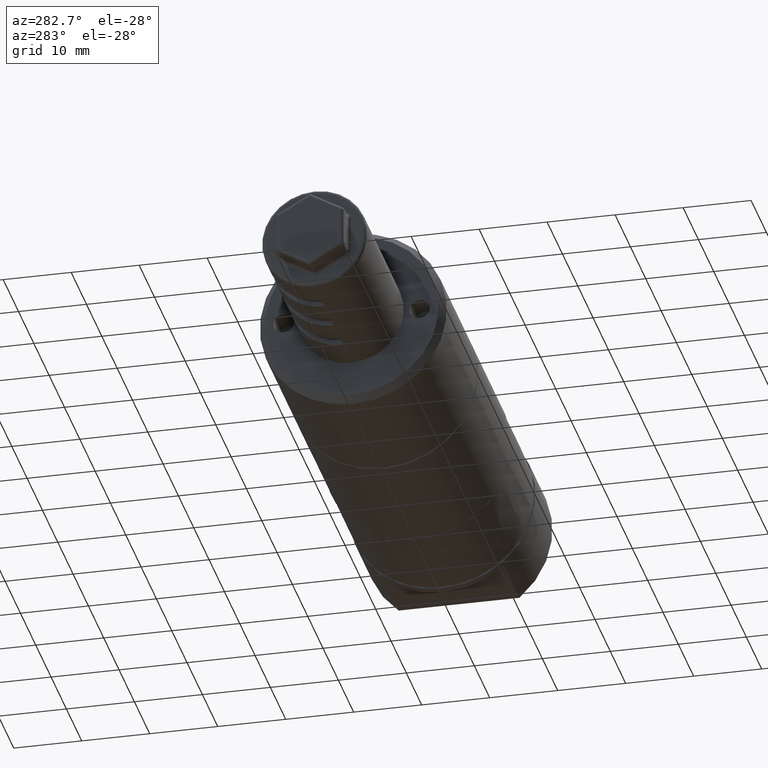
[diagram: clean part render]
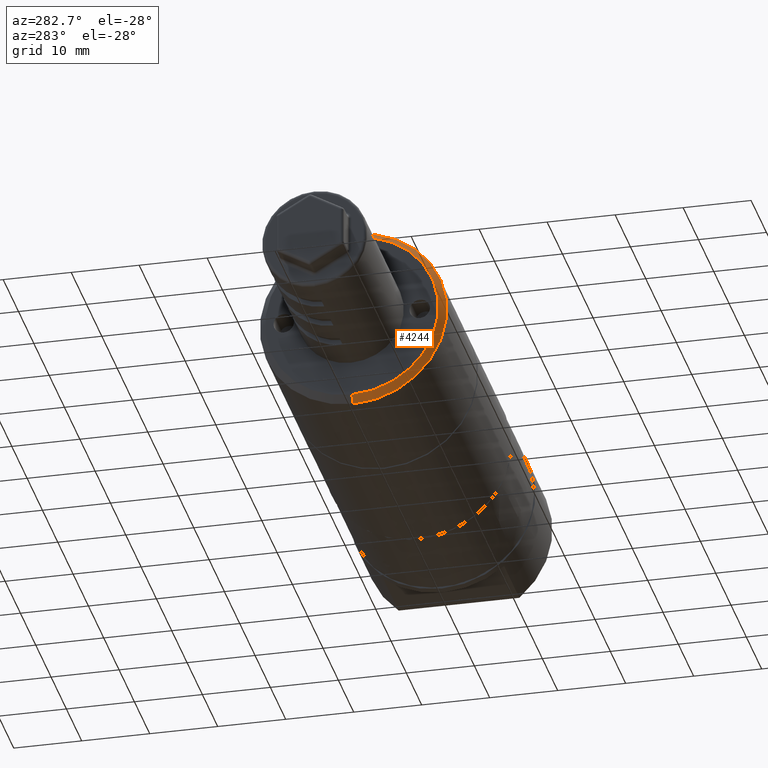
[diagram: same view with one face highlighted and labeled with its STEP entity id]
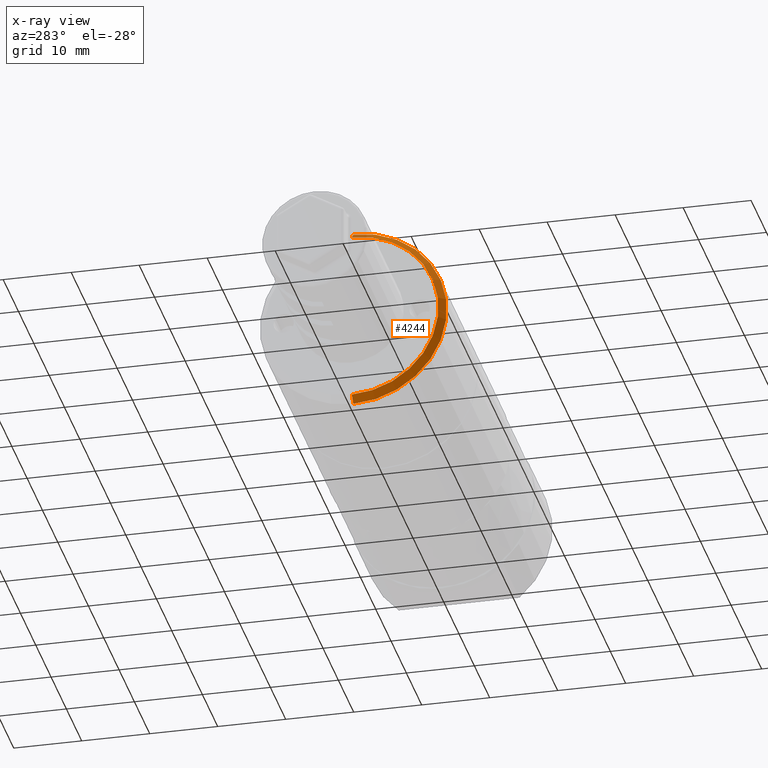
[diagram: x-ray of the same camera — body ghosted, the highlighted face saturated]
A machine part, auxiliary view. The second image highlights one B-rep face of the part: STEP entity #4244.
The next image is the same camera in x-ray: the body ghosted, the highlighted face saturated — about 3% of this face is hidden behind the body in this view.
In plain terms, the highlighted conical surface has half-angle 45 deg.
Its self-contained STEP definition (entity closure, byte-faithful):
#1196 = VERTEX_POINT ( 'NONE', #4997 ) ;
#1556 = AXIS2_PLACEMENT_3D ( 'NONE', #6288, #16122, #9560 ) ;
#1617 = DIRECTION ( 'NONE',  ( 0.7071067811865495700, 8.659560562354907000E-017, 0.7071067811865455700 ) ) ;
#1836 = CARTESIAN_POINT ( 'NONE',  ( -69.00000000000000000, 1.683889348827610700E-015, 13.75000000000000000 ) ) ;
#3173 = CARTESIAN_POINT ( 'NONE',  ( -69.00000000000000000, 0.0000000000000000000, 0.0000000000000000000 ) ) ;
#3292 = CIRCLE ( 'NONE', #1556, 12.75000000000000000 ) ;
#3866 = CARTESIAN_POINT ( 'NONE',  ( -70.00000000000000000, 0.0000000000000000000, -12.75000000000000000 ) ) ;
#4244 = ADVANCED_FACE ( 'NONE', ( #4565 ), #18438, .T. ) ;
#4463 = AXIS2_PLACEMENT_3D ( 'NONE', #7890, #9536, #6261 ) ;
#4565 = FACE_OUTER_BOUND ( 'NONE', #20944, .T. ) ;
#4634 = ORIENTED_EDGE ( 'NONE', *, *, #16832, .F. ) ;
#4737 = DIRECTION ( 'NONE',  ( 0.0000000000000000000, 0.0000000000000000000, 1.000000000000000000 ) ) ;
#4997 = CARTESIAN_POINT ( 'NONE',  ( -69.00000000000000000, 1.683889348827610700E-015, 13.75000000000000000 ) ) ;
#5393 = DIRECTION ( 'NONE',  ( 0.7071067811865495700, 0.0000000000000000000, -0.7071067811865455700 ) ) ;
#5967 = LINE ( 'NONE', #1836, #12908 ) ;
#6261 = DIRECTION ( 'NONE',  ( 0.0000000000000000000, 0.0000000000000000000, -1.000000000000000000 ) ) ;
#6288 = CARTESIAN_POINT ( 'NONE',  ( -70.00000000000000000, 0.0000000000000000000, 0.0000000000000000000 ) ) ;
#6424 = CARTESIAN_POINT ( 'NONE',  ( -69.00000000000000000, 0.0000000000000000000, -13.75000000000000000 ) ) ;
#6688 = DIRECTION ( 'NONE',  ( 1.000000000000000000, -0.0000000000000000000, -0.0000000000000000000 ) ) ;
#7511 = VECTOR ( 'NONE', #5393, 1000.000000000000100 ) ;
#7890 = CARTESIAN_POINT ( 'NONE',  ( -69.00000000000000000, 0.0000000000000000000, 0.0000000000000000000 ) ) ;
#8924 = CIRCLE ( 'NONE', #20540, 13.75000000000000000 ) ;
#9536 = DIRECTION ( 'NONE',  ( 1.000000000000000000, 0.0000000000000000000, 0.0000000000000000000 ) ) ;
#9560 = DIRECTION ( 'NONE',  ( 0.0000000000000000000, 0.0000000000000000000, 1.000000000000000000 ) ) ;
#9564 = LINE ( 'NONE', #17161, #7511 ) ;
#12418 = VERTEX_POINT ( 'NONE', #17861 ) ;
#12908 = VECTOR ( 'NONE', #1617, 1000.000000000000100 ) ;
#13182 = EDGE_CURVE ( 'NONE', #19376, #20135, #9564, .T. ) ;
#14276 = EDGE_CURVE ( 'NONE', #12418, #1196, #5967, .T. ) ;
#15259 = ORIENTED_EDGE ( 'NONE', *, *, #13182, .T. ) ;
#15943 = ORIENTED_EDGE ( 'NONE', *, *, #14276, .F. ) ;
#16122 = DIRECTION ( 'NONE',  ( -1.000000000000000000, 0.0000000000000000000, 0.0000000000000000000 ) ) ;
#16832 = EDGE_CURVE ( 'NONE', #19376, #12418, #3292, .T. ) ;
#17016 = ORIENTED_EDGE ( 'NONE', *, *, #17315, .F. ) ;
#17161 = CARTESIAN_POINT ( 'NONE',  ( -69.00000000000000000, 0.0000000000000000000, -13.75000000000000000 ) ) ;
#17315 = EDGE_CURVE ( 'NONE', #1196, #20135, #8924, .T. ) ;
#17861 = CARTESIAN_POINT ( 'NONE',  ( -70.00000000000000000, 1.622657008870243100E-015, 12.75000000000000000 ) ) ;
#18438 = CONICAL_SURFACE ( 'NONE', #4463, 13.75000000000000000, 0.7853981633974456100 ) ;
#19376 = VERTEX_POINT ( 'NONE', #3866 ) ;
#20135 = VERTEX_POINT ( 'NONE', #6424 ) ;
#20540 = AXIS2_PLACEMENT_3D ( 'NONE', #3173, #6688, #4737 ) ;
#20944 = EDGE_LOOP ( 'NONE', ( #15943, #4634, #15259, #17016 ) ) ;